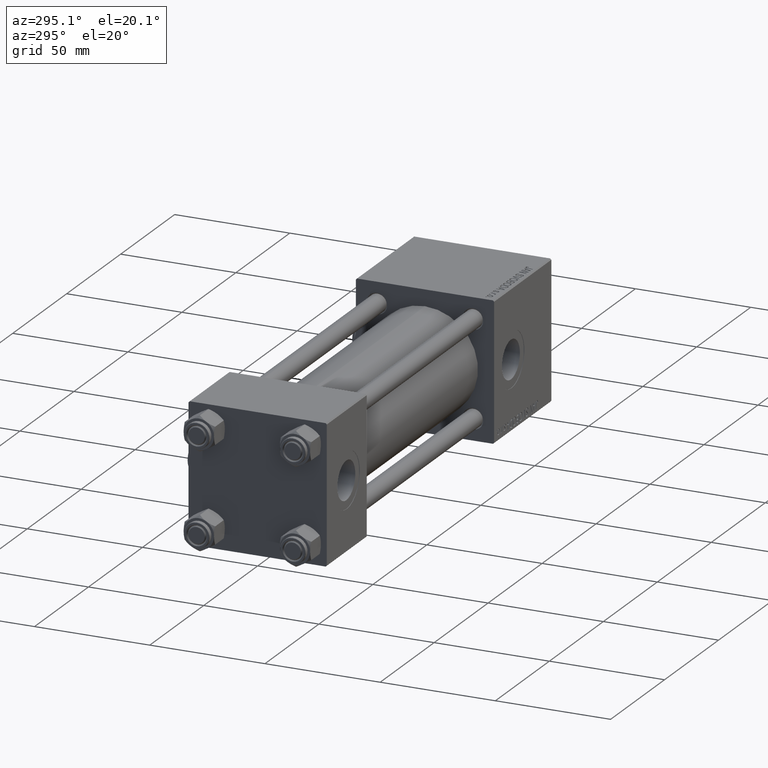
[diagram: clean part render]
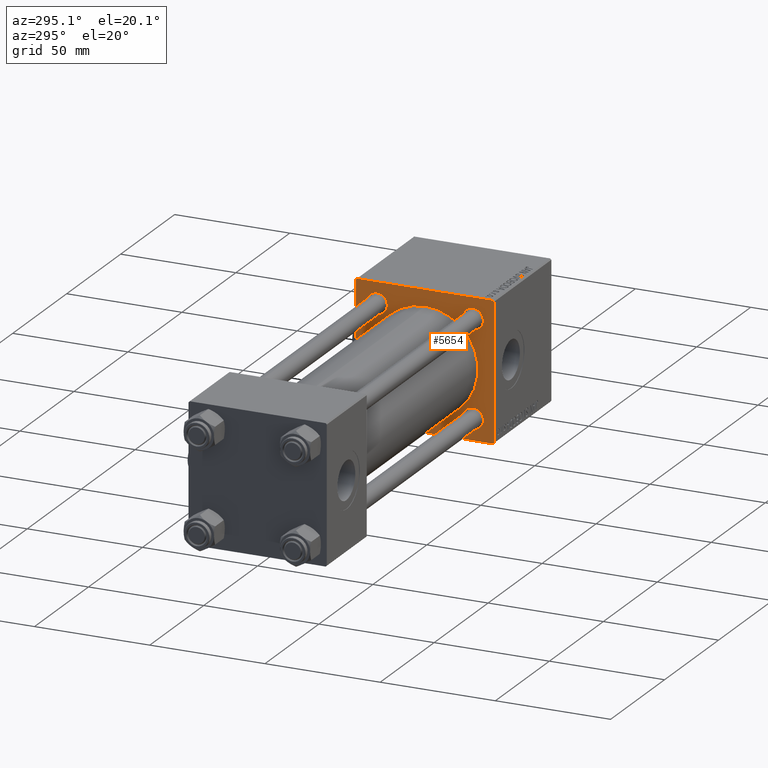
[diagram: same view with one face highlighted and labeled with its STEP entity id]
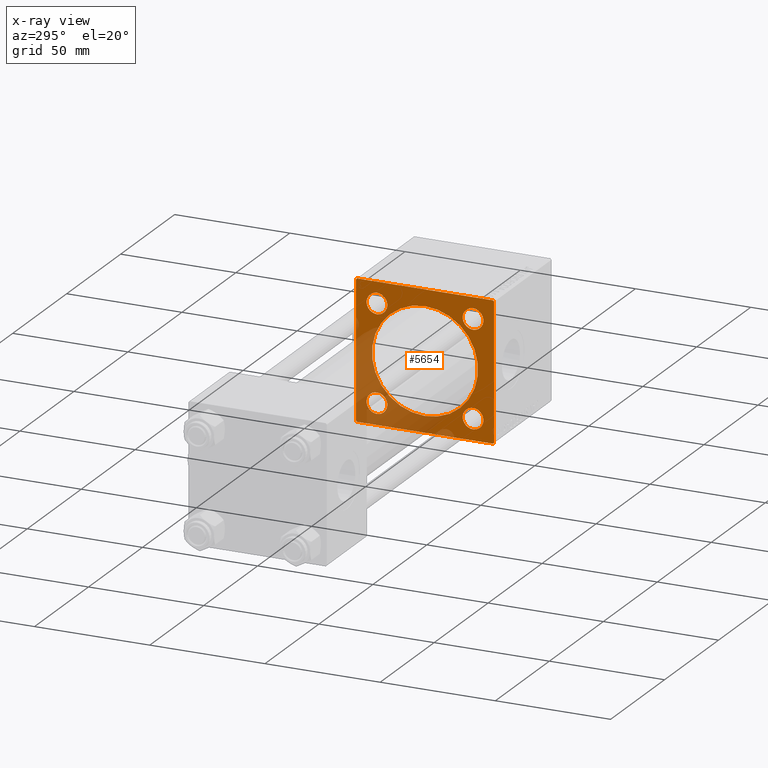
[diagram: x-ray of the same camera — body ghosted, the highlighted face saturated]
A machine part, auxiliary view. The second image highlights one B-rep face of the part: STEP entity #5654.
The next image is the same camera in x-ray: the body ghosted, the highlighted face saturated — about 32% of this face is hidden behind the body in this view.
In plain terms, the highlighted planar face has unit normal (-1, 0, 0).
Its self-contained STEP definition (entity closure, byte-faithful):
#140 = CARTESIAN_POINT ( 'NONE',  ( 155.0000000000000000, -29.75000000000001776, -29.75000000000001776 ) ) ;
#194 = VERTEX_POINT ( 'NONE', #22157 ) ;
#725 = EDGE_LOOP ( 'NONE', ( #40820, #3843 ) ) ;
#928 = CARTESIAN_POINT ( 'NONE',  ( 155.0000000000000000, -20.84999999999999076, -20.85000000000000497 ) ) ;
#1179 = DIRECTION ( 'NONE',  ( 1.000000000000000000, -0.000000000000000000, 0.000000000000000000 ) ) ;
#1717 = LINE ( 'NONE', #17790, #48801 ) ;
#2138 = FACE_BOUND ( 'NONE', #21992, .T. ) ;
#2233 = CARTESIAN_POINT ( 'NONE',  ( 155.0000000000000000, 2.146024240737016609E-16, -23.00000000000000000 ) ) ;
#2355 = VERTEX_POINT ( 'NONE', #16931 ) ;
#2401 = FACE_BOUND ( 'NONE', #37668, .T. ) ;
#2459 = DIRECTION ( 'NONE',  ( 0.000000000000000000, 0.000000000000000000, 1.000000000000000000 ) ) ;
#3249 = EDGE_CURVE ( 'NONE', #41983, #26902, #23688, .T. ) ;
#3843 = ORIENTED_EDGE ( 'NONE', *, *, #44621, .T. ) ;
#4124 = VECTOR ( 'NONE', #47922, 1000.000000000000114 ) ;
#4279 = EDGE_LOOP ( 'NONE', ( #29457, #39025, #40629, #14253, #15575, #13969, #11994, #38142 ) ) ;
#4748 = DIRECTION ( 'NONE',  ( 0.000000000000000000, 0.000000000000000000, 1.000000000000000000 ) ) ;
#5124 = VERTEX_POINT ( 'NONE', #24638 ) ;
#5333 = CIRCLE ( 'NONE', #47927, 23.00000000000000000 ) ;
#5654 = ADVANCED_FACE ( 'NONE', ( #2401, #11640, #19815, #2138, #31814, #27733 ), #7011, .T. ) ;
#5787 = CARTESIAN_POINT ( 'NONE',  ( 155.0000000000000000, 29.50000000000000000, -29.99999999999999289 ) ) ;
#6009 = CARTESIAN_POINT ( 'NONE',  ( 155.0000000000000000, -20.84999999999999076, 20.85000000000000497 ) ) ;
#6344 = VERTEX_POINT ( 'NONE', #10160 ) ;
#7011 = PLANE ( 'NONE',  #36016 ) ;
#7380 = VERTEX_POINT ( 'NONE', #15877 ) ;
#8157 = ORIENTED_EDGE ( 'NONE', *, *, #16351, .T. ) ;
#8329 = DIRECTION ( 'NONE',  ( 0.000000000000000000, 0.000000000000000000, 1.000000000000000000 ) ) ;
#8425 = CIRCLE ( 'NONE', #50154, 4.500000000000007105 ) ;
#8790 = VERTEX_POINT ( 'NONE', #31494 ) ;
#8951 = DIRECTION ( 'NONE',  ( 0.000000000000000000, 0.000000000000000000, 1.000000000000000000 ) ) ;
#9345 = DIRECTION ( 'NONE',  ( 0.000000000000000000, 0.000000000000000000, -1.000000000000000000 ) ) ;
#9353 = DIRECTION ( 'NONE',  ( 1.000000000000000000, -0.000000000000000000, 0.000000000000000000 ) ) ;
#10160 = CARTESIAN_POINT ( 'NONE',  ( 155.0000000000000000, -2.602085213965210642E-15, 23.00000000000000000 ) ) ;
#10183 = EDGE_CURVE ( 'NONE', #53482, #194, #26217, .T. ) ;
#10234 = VERTEX_POINT ( 'NONE', #2233 ) ;
#10539 = VERTEX_POINT ( 'NONE', #51502 ) ;
#10642 = VERTEX_POINT ( 'NONE', #17745 ) ;
#11291 = EDGE_CURVE ( 'NONE', #10642, #38049, #18684, .T. ) ;
#11640 = FACE_BOUND ( 'NONE', #21974, .T. ) ;
#11994 = ORIENTED_EDGE ( 'NONE', *, *, #30202, .T. ) ;
#12023 = AXIS2_PLACEMENT_3D ( 'NONE', #37218, #28787, #8329 ) ;
#12490 = VERTEX_POINT ( 'NONE', #23181 ) ;
#12743 = VERTEX_POINT ( 'NONE', #18504 ) ;
#12773 = CIRCLE ( 'NONE', #49330, 4.500000000000007105 ) ;
#13828 = ORIENTED_EDGE ( 'NONE', *, *, #3249, .T. ) ;
#13842 = AXIS2_PLACEMENT_3D ( 'NONE', #25907, #26171, #17985 ) ;
#13969 = ORIENTED_EDGE ( 'NONE', *, *, #34365, .T. ) ;
#14253 = ORIENTED_EDGE ( 'NONE', *, *, #46439, .T. ) ;
#15481 = DIRECTION ( 'NONE',  ( 0.000000000000000000, 0.000000000000000000, -1.000000000000000000 ) ) ;
#15575 = ORIENTED_EDGE ( 'NONE', *, *, #11291, .F. ) ;
#15877 = CARTESIAN_POINT ( 'NONE',  ( 155.0000000000000000, 30.00000000000000000, -29.49999999999997868 ) ) ;
#16351 = EDGE_CURVE ( 'NONE', #5124, #17816, #8425, .T. ) ;
#16369 = LINE ( 'NONE', #28920, #49348 ) ;
#16931 = CARTESIAN_POINT ( 'NONE',  ( 155.0000000000000000, -30.00000000000000000, 29.50000000000001776 ) ) ;
#17450 = DIRECTION ( 'NONE',  ( 0.000000000000000000, 0.000000000000000000, 1.000000000000000000 ) ) ;
#17509 = EDGE_CURVE ( 'NONE', #7380, #53482, #51747, .T. ) ;
#17745 = CARTESIAN_POINT ( 'NONE',  ( 155.0000000000000000, 29.50000000000002487, 30.00000000000000000 ) ) ;
#17790 = CARTESIAN_POINT ( 'NONE',  ( 155.0000000000000000, -30.00000000000000000, 29.99999999999999289 ) ) ;
#17816 = VERTEX_POINT ( 'NONE', #31537 ) ;
#17985 = DIRECTION ( 'NONE',  ( 0.000000000000000000, 0.000000000000000000, 1.000000000000000000 ) ) ;
#18463 = DIRECTION ( 'NONE',  ( 0.000000000000000000, 0.7071067811865474617, -0.7071067811865474617 ) ) ;
#18468 = AXIS2_PLACEMENT_3D ( 'NONE', #40791, #33167, #28559 ) ;
#18495 = DIRECTION ( 'NONE',  ( 1.000000000000000000, 0.000000000000000000, 0.000000000000000000 ) ) ;
#18504 = CARTESIAN_POINT ( 'NONE',  ( 155.0000000000000000, -20.84999999999999076, -25.35000000000001208 ) ) ;
#18610 = DIRECTION ( 'NONE',  ( 1.000000000000000000, -0.000000000000000000, 0.000000000000000000 ) ) ;
#18684 = LINE ( 'NONE', #35570, #29110 ) ;
#19273 = DIRECTION ( 'NONE',  ( -0.000000000000000000, 0.000000000000000000, 1.000000000000000000 ) ) ;
#19414 = DIRECTION ( 'NONE',  ( 0.000000000000000000, 0.000000000000000000, 1.000000000000000000 ) ) ;
#19545 = DIRECTION ( 'NONE',  ( -1.000000000000000000, 0.000000000000000000, -0.000000000000000000 ) ) ;
#19815 = FACE_BOUND ( 'NONE', #21129, .T. ) ;
#20218 = CIRCLE ( 'NONE', #18468, 23.00000000000000000 ) ;
#20379 = VECTOR ( 'NONE', #47439, 1000.000000000000000 ) ;
#20578 = CARTESIAN_POINT ( 'NONE',  ( 155.0000000000000000, -20.84999999999999076, 25.35000000000001208 ) ) ;
#20738 = ORIENTED_EDGE ( 'NONE', *, *, #31244, .T. ) ;
#20824 = EDGE_CURVE ( 'NONE', #26902, #41983, #12773, .T. ) ;
#21129 = EDGE_LOOP ( 'NONE', ( #41849, #13828 ) ) ;
#21693 = EDGE_CURVE ( 'NONE', #48204, #12743, #34705, .T. ) ;
#21974 = EDGE_LOOP ( 'NONE', ( #8157, #25923 ) ) ;
#21992 = EDGE_LOOP ( 'NONE', ( #48804, #38686 ) ) ;
#22157 = CARTESIAN_POINT ( 'NONE',  ( 155.0000000000000000, -29.50000000000002487, -30.00000000000000000 ) ) ;
#22274 = LINE ( 'NONE', #26652, #52794 ) ;
#22381 = CARTESIAN_POINT ( 'NONE',  ( 155.0000000000000000, 30.00000000000000000, -29.99999999999999289 ) ) ;
#23181 = CARTESIAN_POINT ( 'NONE',  ( 155.0000000000000000, -20.84999999999999076, 16.34999999999999787 ) ) ;
#23324 = CARTESIAN_POINT ( 'NONE',  ( 155.0000000000000000, 20.84999999999999787, -25.35000000000000853 ) ) ;
#23688 = CIRCLE ( 'NONE', #32422, 4.500000000000007105 ) ;
#24537 = VECTOR ( 'NONE', #33899, 1000.000000000000114 ) ;
#24638 = CARTESIAN_POINT ( 'NONE',  ( 155.0000000000000000, 20.84999999999999787, 25.35000000000000853 ) ) ;
#24803 = LINE ( 'NONE', #41670, #29680 ) ;
#25907 = CARTESIAN_POINT ( 'NONE',  ( 155.0000000000000000, -20.84999999999999076, -20.85000000000000497 ) ) ;
#25923 = ORIENTED_EDGE ( 'NONE', *, *, #33159, .T. ) ;
#26171 = DIRECTION ( 'NONE',  ( 1.000000000000000000, -0.000000000000000000, 0.000000000000000000 ) ) ;
#26217 = LINE ( 'NONE', #22381, #20379 ) ;
#26247 = EDGE_CURVE ( 'NONE', #29543, #12490, #51797, .T. ) ;
#26652 = CARTESIAN_POINT ( 'NONE',  ( 155.0000000000000000, 29.75000000000001776, 29.75000000000001776 ) ) ;
#26902 = VERTEX_POINT ( 'NONE', #36088 ) ;
#27470 = CARTESIAN_POINT ( 'NONE',  ( 155.0000000000000000, -29.50000000000002487, 29.99999999999999289 ) ) ;
#27595 = CARTESIAN_POINT ( 'NONE',  ( 155.0000000000000000, 20.84999999999999787, -20.85000000000000142 ) ) ;
#27733 = FACE_OUTER_BOUND ( 'NONE', #4279, .T. ) ;
#28559 = DIRECTION ( 'NONE',  ( 0.000000000000000000, 0.000000000000000000, -1.000000000000000000 ) ) ;
#28787 = DIRECTION ( 'NONE',  ( 1.000000000000000000, -0.000000000000000000, 0.000000000000000000 ) ) ;
#28920 = CARTESIAN_POINT ( 'NONE',  ( 155.0000000000000000, 30.00000000000000000, 30.00000000000000000 ) ) ;
#29110 = VECTOR ( 'NONE', #39911, 1000.000000000000000 ) ;
#29457 = ORIENTED_EDGE ( 'NONE', *, *, #10183, .T. ) ;
#29543 = VERTEX_POINT ( 'NONE', #20578 ) ;
#29680 = VECTOR ( 'NONE', #41405, 1000.000000000000114 ) ;
#30202 = EDGE_CURVE ( 'NONE', #8790, #7380, #16369, .T. ) ;
#31175 = CIRCLE ( 'NONE', #12023, 4.500000000000007105 ) ;
#31244 = EDGE_CURVE ( 'NONE', #12490, #29543, #45937, .T. ) ;
#31494 = CARTESIAN_POINT ( 'NONE',  ( 155.0000000000000000, 30.00000000000000000, 29.50000000000002487 ) ) ;
#31537 = CARTESIAN_POINT ( 'NONE',  ( 155.0000000000000000, 20.84999999999999787, 16.34999999999999432 ) ) ;
#31572 = CARTESIAN_POINT ( 'NONE',  ( 155.0000000000000000, -2.602085213965210642E-15, 0.000000000000000000 ) ) ;
#31814 = FACE_BOUND ( 'NONE', #725, .T. ) ;
#32422 = AXIS2_PLACEMENT_3D ( 'NONE', #27595, #18610, #19414 ) ;
#32575 = CARTESIAN_POINT ( 'NONE',  ( 155.0000000000000000, -20.84999999999999076, -16.34999999999999787 ) ) ;
#32948 = DIRECTION ( 'NONE',  ( 1.000000000000000000, -0.000000000000000000, 0.000000000000000000 ) ) ;
#33159 = EDGE_CURVE ( 'NONE', #17816, #5124, #31175, .T. ) ;
#33167 = DIRECTION ( 'NONE',  ( 1.000000000000000000, 0.000000000000000000, 0.000000000000000000 ) ) ;
#33899 = DIRECTION ( 'NONE',  ( 0.000000000000000000, -0.7071067811865474617, 0.7071067811865474617 ) ) ;
#34077 = CARTESIAN_POINT ( 'NONE',  ( 155.0000000000000000, -20.84999999999999076, 20.85000000000000497 ) ) ;
#34345 = DIRECTION ( 'NONE',  ( 1.000000000000000000, -0.000000000000000000, 0.000000000000000000 ) ) ;
#34365 = EDGE_CURVE ( 'NONE', #10642, #8790, #22274, .T. ) ;
#34705 = CIRCLE ( 'NONE', #40761, 4.500000000000007105 ) ;
#34874 = CARTESIAN_POINT ( 'NONE',  ( 155.0000000000000000, 29.74999999999999645, -29.74999999999999645 ) ) ;
#35359 = CARTESIAN_POINT ( 'NONE',  ( 155.0000000000000000, 0.000000000000000000, 0.000000000000000000 ) ) ;
#35570 = CARTESIAN_POINT ( 'NONE',  ( 155.0000000000000000, 30.00000000000000000, 30.00000000000000000 ) ) ;
#36016 = AXIS2_PLACEMENT_3D ( 'NONE', #35359, #19545, #19273 ) ;
#36088 = CARTESIAN_POINT ( 'NONE',  ( 155.0000000000000000, 20.84999999999999787, -16.34999999999999432 ) ) ;
#36373 = AXIS2_PLACEMENT_3D ( 'NONE', #34077, #34345, #17450 ) ;
#37218 = CARTESIAN_POINT ( 'NONE',  ( 155.0000000000000000, 20.84999999999999787, 20.85000000000000142 ) ) ;
#37567 = EDGE_CURVE ( 'NONE', #12743, #48204, #51243, .T. ) ;
#37668 = EDGE_LOOP ( 'NONE', ( #49332, #20738 ) ) ;
#38049 = VERTEX_POINT ( 'NONE', #27470 ) ;
#38142 = ORIENTED_EDGE ( 'NONE', *, *, #17509, .T. ) ;
#38686 = ORIENTED_EDGE ( 'NONE', *, *, #37567, .T. ) ;
#39025 = ORIENTED_EDGE ( 'NONE', *, *, #48338, .T. ) ;
#39911 = DIRECTION ( 'NONE',  ( 0.000000000000000000, -1.000000000000000000, -1.156482317317871478E-16 ) ) ;
#40629 = ORIENTED_EDGE ( 'NONE', *, *, #50903, .F. ) ;
#40761 = AXIS2_PLACEMENT_3D ( 'NONE', #928, #9353, #4748 ) ;
#40791 = CARTESIAN_POINT ( 'NONE',  ( 155.0000000000000000, -2.602085213965210642E-15, 0.000000000000000000 ) ) ;
#40820 = ORIENTED_EDGE ( 'NONE', *, *, #45469, .T. ) ;
#41405 = DIRECTION ( 'NONE',  ( -0.000000000000000000, 0.7071067811865474617, 0.7071067811865474617 ) ) ;
#41670 = CARTESIAN_POINT ( 'NONE',  ( 155.0000000000000000, -29.75000000000001066, 29.75000000000001066 ) ) ;
#41849 = ORIENTED_EDGE ( 'NONE', *, *, #20824, .T. ) ;
#41983 = VERTEX_POINT ( 'NONE', #23324 ) ;
#42831 = CARTESIAN_POINT ( 'NONE',  ( 155.0000000000000000, 20.84999999999999787, 20.85000000000000142 ) ) ;
#44621 = EDGE_CURVE ( 'NONE', #10234, #6344, #20218, .T. ) ;
#45469 = EDGE_CURVE ( 'NONE', #6344, #10234, #5333, .T. ) ;
#45511 = DIRECTION ( 'NONE',  ( 0.000000000000000000, 0.000000000000000000, -1.000000000000000000 ) ) ;
#45619 = LINE ( 'NONE', #140, #24537 ) ;
#45739 = AXIS2_PLACEMENT_3D ( 'NONE', #6009, #52019, #2459 ) ;
#45937 = CIRCLE ( 'NONE', #36373, 4.500000000000007105 ) ;
#46265 = CARTESIAN_POINT ( 'NONE',  ( 155.0000000000000000, 20.84999999999999787, -20.85000000000000142 ) ) ;
#46439 = EDGE_CURVE ( 'NONE', #2355, #38049, #24803, .T. ) ;
#47439 = DIRECTION ( 'NONE',  ( 0.000000000000000000, -1.000000000000000000, -1.156482317317871478E-16 ) ) ;
#47922 = DIRECTION ( 'NONE',  ( -0.000000000000000000, -0.7071067811865474617, -0.7071067811865474617 ) ) ;
#47927 = AXIS2_PLACEMENT_3D ( 'NONE', #31572, #18495, #15481 ) ;
#48204 = VERTEX_POINT ( 'NONE', #32575 ) ;
#48338 = EDGE_CURVE ( 'NONE', #194, #10539, #45619, .T. ) ;
#48801 = VECTOR ( 'NONE', #9345, 1000.000000000000000 ) ;
#48804 = ORIENTED_EDGE ( 'NONE', *, *, #21693, .T. ) ;
#49330 = AXIS2_PLACEMENT_3D ( 'NONE', #46265, #32948, #8951 ) ;
#49332 = ORIENTED_EDGE ( 'NONE', *, *, #26247, .T. ) ;
#49348 = VECTOR ( 'NONE', #45511, 1000.000000000000000 ) ;
#50154 = AXIS2_PLACEMENT_3D ( 'NONE', #42831, #1179, #50458 ) ;
#50458 = DIRECTION ( 'NONE',  ( 0.000000000000000000, 0.000000000000000000, 1.000000000000000000 ) ) ;
#50903 = EDGE_CURVE ( 'NONE', #2355, #10539, #1717, .T. ) ;
#51243 = CIRCLE ( 'NONE', #13842, 4.500000000000007105 ) ;
#51502 = CARTESIAN_POINT ( 'NONE',  ( 155.0000000000000000, -30.00000000000000000, -29.50000000000001066 ) ) ;
#51747 = LINE ( 'NONE', #34874, #4124 ) ;
#51797 = CIRCLE ( 'NONE', #45739, 4.500000000000007105 ) ;
#52019 = DIRECTION ( 'NONE',  ( 1.000000000000000000, -0.000000000000000000, 0.000000000000000000 ) ) ;
#52794 = VECTOR ( 'NONE', #18463, 1000.000000000000114 ) ;
#53482 = VERTEX_POINT ( 'NONE', #5787 ) ;